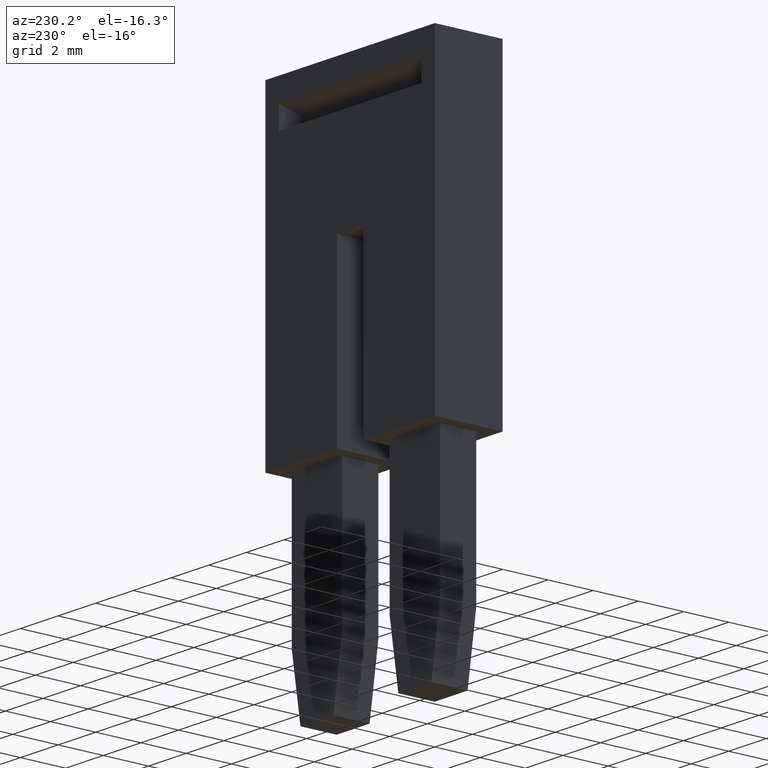
[diagram: clean part render]
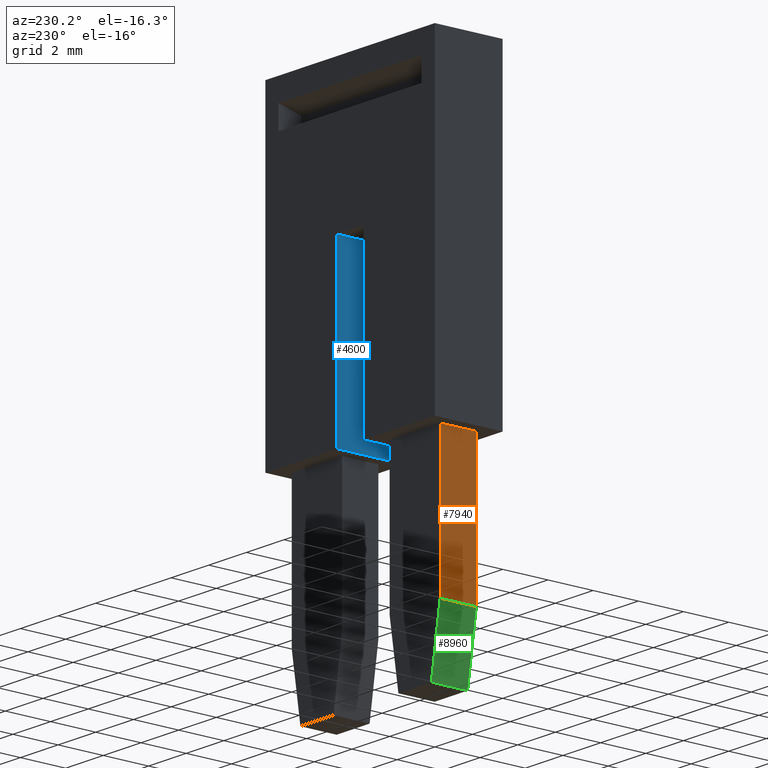
[diagram: same view with three faces highlighted in distinct colors, each labeled with its STEP entity id]
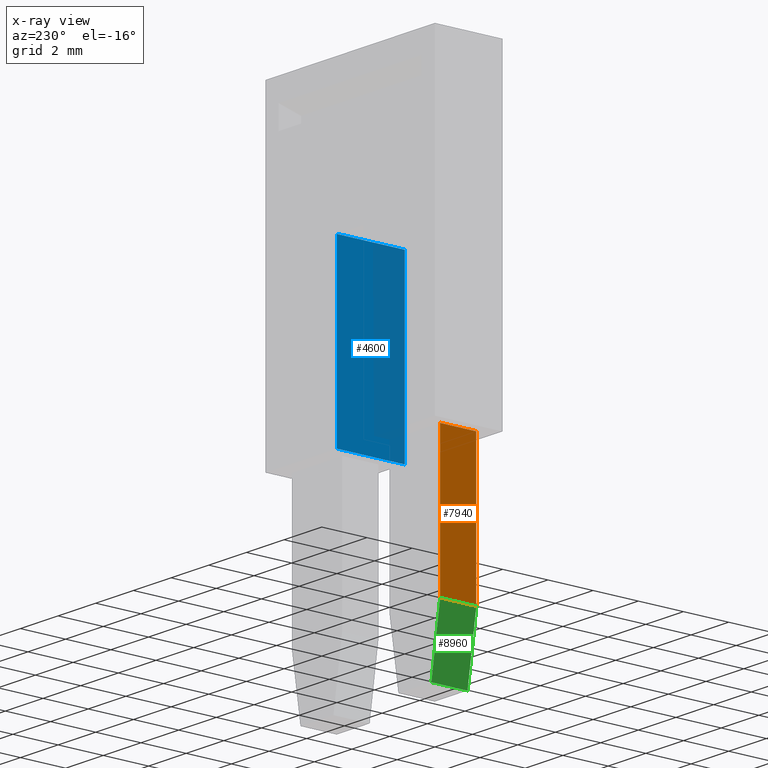
[diagram: x-ray of the same camera — body ghosted, the three highlighted faces saturated]
A machine part, auxiliary view with three faces highlighted in distinct colors.
The next image is the same camera in x-ray (body ghosted, the three faces saturated) — at least one of them is partly hidden behind the body in this view.
Their STEP definitions:

[orange] entity #7940 — the highlighted planar face has unit normal (1, -0, 0).
#2090=CARTESIAN_POINT('',(3.30716722167659,-23.0750000000005,
49.9199999990358));
#2100=VERTEX_POINT('',#2090);
#2130=CARTESIAN_POINT('',(5.60716722168535,-23.0750000000002,
49.9199999990358));
#2140=DIRECTION('',(-1.,-1.26010313294955E-13,-8.57252759403285E-16));
#2150=VECTOR('',#2140,1.);
#2160=LINE('',#2130,#2150);
#2170=CARTESIAN_POINT('',(4.90716722167659,-23.0750000000003,
49.9199999990358));
#2180=VERTEX_POINT('',#2170);
#2190=EDGE_CURVE('',#2180,#2100,#2160,.T.);
#5830=CARTESIAN_POINT('',(4.90716722167737,-29.2807420542216,
49.9199999990367));
#5840=VERTEX_POINT('',#5830);
#6030=CARTESIAN_POINT('',(4.90716722167523,-12.305124,49.9199999990342))
;
#6040=DIRECTION('',(-1.26010313294958E-13,1.,-1.44925274306014E-13));
#6050=VECTOR('',#6040,1.);
#6060=LINE('',#6030,#6050);
#6070=EDGE_CURVE('',#5840,#2180,#6060,.T.);
#7710=CARTESIAN_POINT('',(3.3071672216767,-23.9749993186427,
49.9199999990359));
#7720=DIRECTION('',(-8.5725275942156E-16,1.44925274306014E-13,1.));
#7730=DIRECTION('',(1.26010313294958E-13,-1.,1.44925274306014E-13));
#7740=AXIS2_PLACEMENT_3D('',#7710,#7720,#7730);
#7750=PLANE('',#7740);
#7760=ORIENTED_EDGE('',*,*,#2190,.F.);
#7770=CARTESIAN_POINT('',(3.30716722167523,-12.305124,49.9199999990342))
;
#7780=DIRECTION('',(-1.26010313294958E-13,1.,-1.44925274306014E-13));
#7790=VECTOR('',#7780,1.);
#7800=LINE('',#7770,#7790);
#7810=CARTESIAN_POINT('',(3.30716722167737,-29.2807420542218,
49.9199999990367));
#7820=VERTEX_POINT('',#7810);
#7830=EDGE_CURVE('',#7820,#2100,#7800,.T.);
#7840=ORIENTED_EDGE('',*,*,#7830,.T.);
#7850=CARTESIAN_POINT('',(5.60716722168535,-29.2807420542215,
49.9199999990367));
#7860=DIRECTION('',(1.,1.26010313294958E-13,8.57252759403301E-16));
#7870=VECTOR('',#7860,1.);
#7880=LINE('',#7850,#7870);
#7890=EDGE_CURVE('',#7820,#5840,#7880,.T.);
#7900=ORIENTED_EDGE('',*,*,#7890,.F.);
#7910=ORIENTED_EDGE('',*,*,#6070,.F.);
#7920=EDGE_LOOP('',(#7910,#7900,#7840,#7760));
#7930=FACE_OUTER_BOUND('',#7920,.T.);
#7940=ADVANCED_FACE('',(#7930),#7750,.F.);

[blue] entity #4600 — the highlighted planar face has unit normal (-1, 0, 0).
#1080=CARTESIAN_POINT('',(5.6071672216854,-15.4750000000002,
54.5599999999988));
#1090=VERTEX_POINT('',#1080);
#1120=CARTESIAN_POINT('',(5.60716722168504,-12.6051239999998,
54.5599999999988));
#1130=DIRECTION('',(1.26010313294955E-13,-1.,-3.08148791101716E-33));
#1140=VECTOR('',#1130,1.);
#1150=LINE('',#1120,#1140);
#1160=CARTESIAN_POINT('',(5.60716722168636,-23.0750000000002,
54.5599999999988));
#1170=VERTEX_POINT('',#1160);
#1180=EDGE_CURVE('',#1090,#1170,#1150,.T.);
#1630=CARTESIAN_POINT('',(2.6071672216854,-15.4750000000006,
54.5599999999988));
#1640=VERTEX_POINT('',#1630);
#1670=CARTESIAN_POINT('',(2.60716722168541,-15.4750000000006,
54.5599999999988));
#1680=DIRECTION('',(-1.,-1.26010313294955E-13,0.));
#1690=VECTOR('',#1680,1.);
#1700=LINE('',#1670,#1690);
#1710=EDGE_CURVE('',#1090,#1640,#1700,.T.);
#3370=CARTESIAN_POINT('',(2.60716722168635,-23.0750000000006,
54.5599999999988));
#3380=VERTEX_POINT('',#3370);
#3410=CARTESIAN_POINT('',(2.60716722168503,-12.6051240000002,
54.5599999999988));
#3420=DIRECTION('',(1.26010313294955E-13,-1.,-3.08148791101716E-33));
#3430=VECTOR('',#3420,1.);
#3440=LINE('',#3410,#3430);
#3450=EDGE_CURVE('',#1640,#3380,#3440,.T.);
#4140=CARTESIAN_POINT('',(2.60716722168637,-23.0750000000006,
54.5599999999988));
#4150=DIRECTION('',(-1.,-1.26010313294955E-13,0.));
#4160=VECTOR('',#4150,1.);
#4170=LINE('',#4140,#4160);
#4180=EDGE_CURVE('',#1170,#3380,#4170,.T.);
#4490=CARTESIAN_POINT('',(2.60716722168541,-15.4750000000006,
54.5599999999988));
#4500=DIRECTION('',(-3.8829925708189E-46,3.08148791101716E-33,-1.));
#4510=DIRECTION('',(-1.26010313294955E-13,1.,3.08148791101716E-33));
#4520=AXIS2_PLACEMENT_3D('',#4490,#4500,#4510);
#4530=PLANE('',#4520);
#4540=ORIENTED_EDGE('',*,*,#3450,.F.);
#4550=ORIENTED_EDGE('',*,*,#4180,.T.);
#4560=ORIENTED_EDGE('',*,*,#1180,.T.);
#4570=ORIENTED_EDGE('',*,*,#1710,.F.);
#4580=EDGE_LOOP('',(#4570,#4560,#4550,#4540));
#4590=FACE_OUTER_BOUND('',#4580,.T.);
#4600=ADVANCED_FACE('',(#4590),#4530,.T.);

[green] entity #8960 — the highlighted planar face has unit normal (0.9872, -0, 0.1594).
#5770=CARTESIAN_POINT('',(4.90716722167523,-12.305124,47.1795979224319))
;
#5780=DIRECTION('',(-1.24261712031171E-13,0.987219178105449,
-0.159368423411923));
#5790=VECTOR('',#5780,1.);
#5800=LINE('',#5770,#5790);
#5810=CARTESIAN_POINT('',(4.90716722167773,-32.1500000022977,
50.383189051365));
#5820=VERTEX_POINT('',#5810);
#5830=CARTESIAN_POINT('',(4.90716722167737,-29.2807420542216,
49.9199999990367));
#5840=VERTEX_POINT('',#5830);
#5850=EDGE_CURVE('',#5820,#5840,#5800,.T.);
#7810=CARTESIAN_POINT('',(3.30716722167737,-29.2807420542218,
49.9199999990367));
#7820=VERTEX_POINT('',#7810);
#7850=CARTESIAN_POINT('',(5.60716722168535,-29.2807420542215,
49.9199999990367));
#7860=DIRECTION('',(1.,1.26010313294958E-13,8.57252759403301E-16));
#7870=VECTOR('',#7860,1.);
#7880=LINE('',#7850,#7870);
#7890=EDGE_CURVE('',#7820,#5840,#7880,.T.);
#8160=CARTESIAN_POINT('',(3.30716722167773,-32.1500000022979,
50.383189051365));
#8170=VERTEX_POINT('',#8160);
#8200=CARTESIAN_POINT('',(3.30716722167523,-12.305124,47.1795979224318))
;
#8210=DIRECTION('',(-1.24261712031171E-13,0.987219178105449,
-0.159368423411923));
#8220=VECTOR('',#8210,1.);
#8230=LINE('',#8200,#8220);
#8240=EDGE_CURVE('',#8170,#7820,#8230,.T.);
#8800=CARTESIAN_POINT('',(3.30716722167768,-31.7296842117118,
50.3153367786717));
#8810=DIRECTION('',(-2.09283613280267E-14,0.159368423411923,
0.987219178105449));
#8820=DIRECTION('',(1.24263178903127E-13,-0.987219178105449,
0.159368423411923));
#8830=AXIS2_PLACEMENT_3D('',#8800,#8810,#8820);
#8840=PLANE('',#8830);
#8850=ORIENTED_EDGE('',*,*,#8240,.T.);
#8860=CARTESIAN_POINT('',(3.30716722167773,-32.1500000022979,
50.383189051365));
#8870=DIRECTION('',(-1.,-1.26010313294958E-13,-8.57252759403298E-16));
#8880=VECTOR('',#8870,1.);
#8890=LINE('',#8860,#8880);
#8900=EDGE_CURVE('',#5820,#8170,#8890,.T.);
#8910=ORIENTED_EDGE('',*,*,#8900,.T.);
#8920=ORIENTED_EDGE('',*,*,#5850,.F.);
#8930=ORIENTED_EDGE('',*,*,#7890,.T.);
#8940=EDGE_LOOP('',(#8930,#8920,#8910,#8850));
#8950=FACE_OUTER_BOUND('',#8940,.T.);
#8960=ADVANCED_FACE('',(#8950),#8840,.F.);